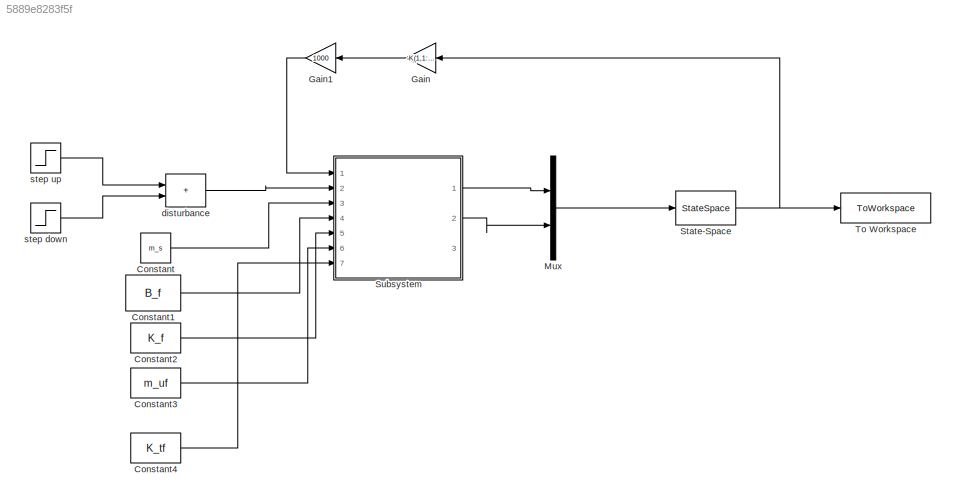
MODEL slx_5889e8283f5f
KIND model
CONFIG AbsTol = auto
CONFIG EnableMultiTasking = off
CONFIG FixedStep = auto
CONFIG MaxStep = auto
CONFIG MinStep = auto
CONFIG RelTol = 1e-3
CONFIG SampleTimeConstraint = Unconstrained
CONFIG SolverName = ode45
CONFIG StartTime = 0.0
CONFIG StopTime = 5
BLOCK [Constant] Constant
  Value = m_s
BLOCK [Constant] Constant1
  Value = B_f
BLOCK [Constant] Constant2
  Value = K_f
BLOCK [Constant] Constant3
  Value = m_uf
BLOCK [Constant] Constant4
  Value = K_tf
BLOCK [Gain] Gain
  Gain = -K(1,1:4)
  Multiplication = Matrix(K*u)
BLOCK [Gain] Gain1
  Gain = 1000
BLOCK [Mux] Mux
  DisplayOption = bar
  Inputs = 2
  Ports = [2, 1]
BLOCK [StateSpace] State-Space
  A = filter_H.A
  B = filter_H.B
  C = filter_H.C
  D = filter_H.D
  InitialCondition = 0
  Ports = [1, 1]
BLOCK [SubSystem] Subsystem
  Ports = [7, 3]
  ReferencedSubsystem = quarter_car_w_tire_subsystem
  RequestExecContextInheritance = off
  TreatAsAtomicUnit = on
BLOCK [ToWorkspace] To Workspace
  FixptAsFi = on
  MaxDataPoints = inf
  Ports = [1]
  SampleTime = -1
  SaveFormat = Timeseries
  VariableName = simout
BLOCK [Sum] disturbance
  IconShape = rectangular
  Ports = [2, 1]
BLOCK [Step] step down
  After = -1
  SampleTime = 0
BLOCK [Step] step up
  SampleTime = 0
  Time = 0
LINE Constant1:1 -> Subsystem:4
LINE Constant2:1 -> Subsystem:5
LINE Constant3:1 -> Subsystem:6
LINE Constant4:1 -> Subsystem:7
LINE Constant:1 -> Subsystem:3
LINE Gain1:1 -> Subsystem:1
LINE Gain:1 -> Gain1:1
LINE Mux:1 -> State-Space:1
NET State-Space:1 -> Gain:1, To Workspace:1
LINE Subsystem:1 -> Mux:1
LINE Subsystem:2 -> Mux:2
LINE disturbance:1 -> Subsystem:2
LINE step down:1 -> disturbance:2
LINE step up:1 -> disturbance:1
note: NET lines group one-source signal fan-out (src -> all destinations, sorted); 1:1 wires keep LINE
